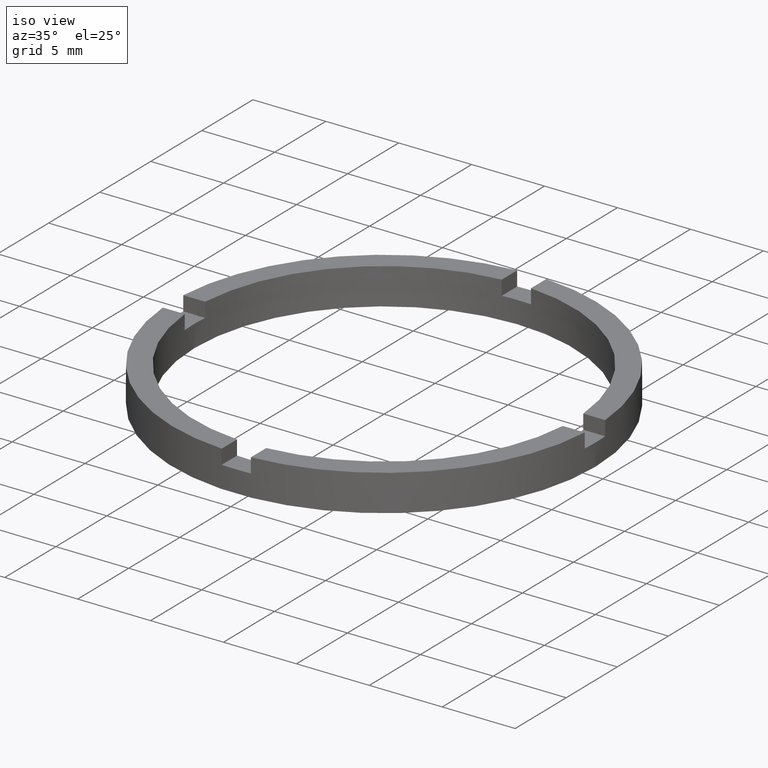
[diagram: clean part render]
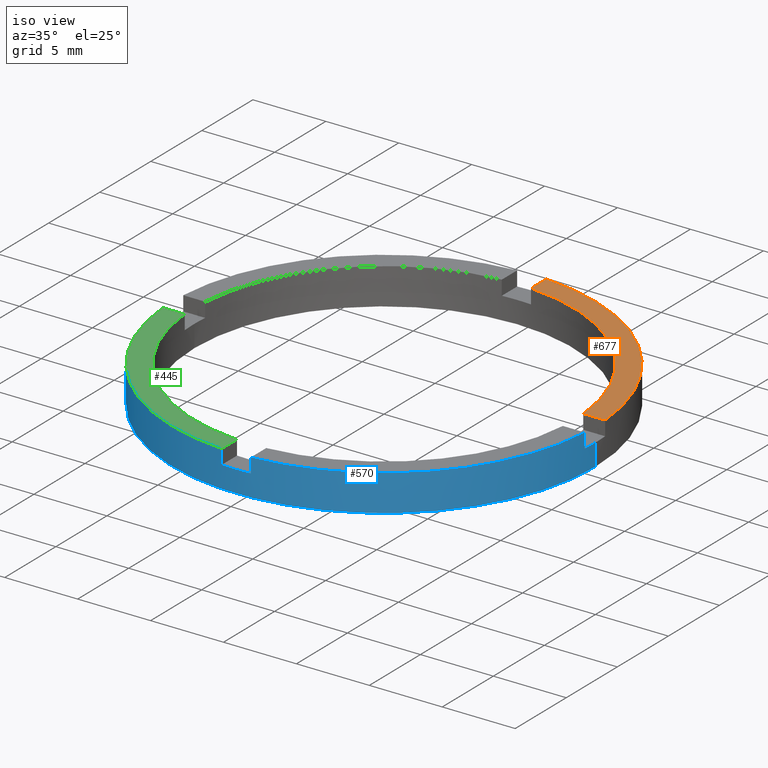
[diagram: same view with three faces highlighted in distinct colors, each labeled with its STEP entity id]
A machine part, iso view with three faces highlighted in distinct colors.
Their STEP definitions:

[orange] entity #677 — the highlighted planar face has unit normal (0, 0, 1).
#11 = DIRECTION ( 'NONE',  ( 0.000000000000000000, 0.000000000000000000, 1.000000000000000000 ) ) ;
#16 = LINE ( 'NONE', #338, #32 ) ;
#20 = FACE_OUTER_BOUND ( 'NONE', #729, .T. ) ;
#32 = VECTOR ( 'NONE', #235, 1000.000000000000000 ) ;
#59 = PLANE ( 'NONE',  #175 ) ;
#62 = EDGE_CURVE ( 'NONE', #270, #230, #105, .T. ) ;
#69 = EDGE_CURVE ( 'NONE', #230, #523, #355, .T. ) ;
#71 = CARTESIAN_POINT ( 'NONE',  ( 0.000000000000000000, 0.000000000000000000, 2.500000000000000000 ) ) ;
#76 = CARTESIAN_POINT ( 'NONE',  ( 0.9999999999999751310, 14.46547614148943417, 2.500000000000000000 ) ) ;
#92 = CARTESIAN_POINT ( 'NONE',  ( 0.000000000000000000, 0.000000000000000000, 2.500000000000000000 ) ) ;
#105 = CIRCLE ( 'NONE', #169, 13.00000000000000178 ) ;
#131 = AXIS2_PLACEMENT_3D ( 'NONE', #92, #685, #458 ) ;
#137 = VECTOR ( 'NONE', #367, 1000.000000000000000 ) ;
#139 = CARTESIAN_POINT ( 'NONE',  ( 12.96148139681573497, 0.9999999999998406830, 2.500000000000000000 ) ) ;
#169 = AXIS2_PLACEMENT_3D ( 'NONE', #71, #11, #322 ) ;
#175 = AXIS2_PLACEMENT_3D ( 'NONE', #624, #773, #439 ) ;
#230 = VERTEX_POINT ( 'NONE', #485 ) ;
#235 = DIRECTION ( 'NONE',  ( -1.000000000000000000, -4.336808689942017736E-17, -0.000000000000000000 ) ) ;
#244 = VERTEX_POINT ( 'NONE', #428 ) ;
#270 = VERTEX_POINT ( 'NONE', #139 ) ;
#287 = CIRCLE ( 'NONE', #131, 14.50000000000000000 ) ;
#322 = DIRECTION ( 'NONE',  ( 1.000000000000000000, 0.000000000000000000, 0.000000000000000000 ) ) ;
#338 = CARTESIAN_POINT ( 'NONE',  ( 4.499999999999995559, 0.9999999999998402389, 2.500000000000000000 ) ) ;
#355 = LINE ( 'NONE', #359, #137 ) ;
#359 = CARTESIAN_POINT ( 'NONE',  ( 0.9999999999999751310, 4.500000000000000888, 2.500000000000000000 ) ) ;
#367 = DIRECTION ( 'NONE',  ( 0.000000000000000000, 1.000000000000000000, 0.000000000000000000 ) ) ;
#421 = ORIENTED_EDGE ( 'NONE', *, *, #62, .F. ) ;
#428 = CARTESIAN_POINT ( 'NONE',  ( 14.46547614148944483, 0.9999999999998406830, 2.500000000000000000 ) ) ;
#439 = DIRECTION ( 'NONE',  ( 1.000000000000000000, 0.000000000000000000, -0.000000000000000000 ) ) ;
#458 = DIRECTION ( 'NONE',  ( 1.000000000000000000, 0.000000000000000000, 0.000000000000000000 ) ) ;
#481 = ORIENTED_EDGE ( 'NONE', *, *, #69, .F. ) ;
#485 = CARTESIAN_POINT ( 'NONE',  ( 0.9999999999999751310, 12.96148139681572431, 2.500000000000000000 ) ) ;
#523 = VERTEX_POINT ( 'NONE', #76 ) ;
#588 = EDGE_CURVE ( 'NONE', #244, #270, #16, .T. ) ;
#624 = CARTESIAN_POINT ( 'NONE',  ( 0.000000000000000000, 0.000000000000000000, 2.500000000000000000 ) ) ;
#677 = ADVANCED_FACE ( 'NONE', ( #20 ), #59, .T. ) ;
#685 = DIRECTION ( 'NONE',  ( 0.000000000000000000, 0.000000000000000000, 1.000000000000000000 ) ) ;
#693 = EDGE_CURVE ( 'NONE', #244, #523, #287, .T. ) ;
#710 = ORIENTED_EDGE ( 'NONE', *, *, #588, .F. ) ;
#717 = ORIENTED_EDGE ( 'NONE', *, *, #693, .T. ) ;
#729 = EDGE_LOOP ( 'NONE', ( #481, #421, #710, #717 ) ) ;
#773 = DIRECTION ( 'NONE',  ( 0.000000000000000000, 0.000000000000000000, 1.000000000000000000 ) ) ;

[blue] entity #570 — the highlighted cylindrical surface (partial cylindrical patch) has radius 14.5 mm, axis along (-0, -0, -1).
#1 = DIRECTION ( 'NONE',  ( 1.000000000000000000, 0.000000000000000000, 0.000000000000000000 ) ) ;
#3 = DIRECTION ( 'NONE',  ( 1.000000000000000000, 0.000000000000000000, 0.000000000000000000 ) ) ;
#15 = DIRECTION ( 'NONE',  ( 0.000000000000000000, 0.000000000000000000, 1.000000000000000000 ) ) ;
#29 = VECTOR ( 'NONE', #90, 1000.000000000000000 ) ;
#34 = CARTESIAN_POINT ( 'NONE',  ( -14.46547614148943062, -1.000000000000022871, 1.500000000000000000 ) ) ;
#38 = VECTOR ( 'NONE', #206, 1000.000000000000000 ) ;
#46 = LINE ( 'NONE', #574, #29 ) ;
#53 = DIRECTION ( 'NONE',  ( -0.000000000000000000, -0.000000000000000000, -1.000000000000000000 ) ) ;
#60 = DIRECTION ( 'NONE',  ( 0.000000000000000000, 0.000000000000000000, 1.000000000000000000 ) ) ;
#66 = CARTESIAN_POINT ( 'NONE',  ( 14.50000000000000000, 1.775737858763662015E-15, 0.000000000000000000 ) ) ;
#90 = DIRECTION ( 'NONE',  ( 0.000000000000000000, 0.000000000000000000, 1.000000000000000000 ) ) ;
#93 = AXIS2_PLACEMENT_3D ( 'NONE', #237, #301, #639 ) ;
#104 = CARTESIAN_POINT ( 'NONE',  ( 14.50000000000000000, 1.775737858763662015E-15, 2.500000000000000000 ) ) ;
#122 = LINE ( 'NONE', #780, #386 ) ;
#127 = CIRCLE ( 'NONE', #93, 14.50000000000000000 ) ;
#156 = CARTESIAN_POINT ( 'NONE',  ( 0.9999999999998369082, -14.46547614148944483, 1.500000000000000000 ) ) ;
#159 = CARTESIAN_POINT ( 'NONE',  ( 14.50000000000000000, 1.775737858763662015E-15, 1.500000000000000000 ) ) ;
#170 = DIRECTION ( 'NONE',  ( 1.000000000000000000, 0.000000000000000000, 0.000000000000000000 ) ) ;
#172 = ORIENTED_EDGE ( 'NONE', *, *, #364, .F. ) ;
#174 = DIRECTION ( 'NONE',  ( -0.000000000000000000, -0.000000000000000000, -1.000000000000000000 ) ) ;
#179 = CIRCLE ( 'NONE', #722, 14.50000000000000000 ) ;
#180 = CARTESIAN_POINT ( 'NONE',  ( 0.000000000000000000, 0.000000000000000000, 2.500000000000000000 ) ) ;
#204 = ORIENTED_EDGE ( 'NONE', *, *, #559, .T. ) ;
#206 = DIRECTION ( 'NONE',  ( -0.000000000000000000, -0.000000000000000000, -1.000000000000000000 ) ) ;
#222 = VERTEX_POINT ( 'NONE', #357 ) ;
#231 = ORIENTED_EDGE ( 'NONE', *, *, #300, .T. ) ;
#234 = EDGE_LOOP ( 'NONE', ( #471, #172, #204, #678, #726, #747, #231, #480, #464, #732, #735, #456 ) ) ;
#237 = CARTESIAN_POINT ( 'NONE',  ( 0.000000000000000000, 0.000000000000000000, 2.500000000000000000 ) ) ;
#243 = EDGE_CURVE ( 'NONE', #516, #484, #636, .T. ) ;
#257 = VERTEX_POINT ( 'NONE', #66 ) ;
#263 = EDGE_CURVE ( 'NONE', #777, #222, #127, .T. ) ;
#281 = EDGE_CURVE ( 'NONE', #781, #723, #625, .T. ) ;
#285 = LINE ( 'NONE', #528, #548 ) ;
#288 = CARTESIAN_POINT ( 'NONE',  ( 0.000000000000000000, 0.000000000000000000, 2.500000000000000000 ) ) ;
#292 = FACE_OUTER_BOUND ( 'NONE', #234, .T. ) ;
#300 = EDGE_CURVE ( 'NONE', #426, #222, #122, .T. ) ;
#301 = DIRECTION ( 'NONE',  ( 0.000000000000000000, 0.000000000000000000, 1.000000000000000000 ) ) ;
#304 = LINE ( 'NONE', #775, #552 ) ;
#306 = EDGE_CURVE ( 'NONE', #734, #257, #638, .T. ) ;
#316 = EDGE_CURVE ( 'NONE', #426, #425, #179, .T. ) ;
#323 = CARTESIAN_POINT ( 'NONE',  ( -14.50000000000000000, 0.000000000000000000, 1.500000000000000000 ) ) ;
#324 = AXIS2_PLACEMENT_3D ( 'NONE', #288, #410, #340 ) ;
#329 = DIRECTION ( 'NONE',  ( 1.000000000000000000, 0.000000000000000000, 0.000000000000000000 ) ) ;
#340 = DIRECTION ( 'NONE',  ( -1.000000000000000000, 0.000000000000000000, 0.000000000000000000 ) ) ;
#357 = CARTESIAN_POINT ( 'NONE',  ( -1.000000000000162981, -14.46547614148942174, 2.500000000000000000 ) ) ;
#364 = EDGE_CURVE ( 'NONE', #491, #734, #565, .T. ) ;
#373 = AXIS2_PLACEMENT_3D ( 'NONE', #613, #641, #686 ) ;
#386 = VECTOR ( 'NONE', #60, 1000.000000000000000 ) ;
#402 = AXIS2_PLACEMENT_3D ( 'NONE', #749, #620, #329 ) ;
#405 = CARTESIAN_POINT ( 'NONE',  ( 0.000000000000000000, 0.000000000000000000, 0.000000000000000000 ) ) ;
#410 = DIRECTION ( 'NONE',  ( -0.000000000000000000, -0.000000000000000000, -1.000000000000000000 ) ) ;
#412 = CARTESIAN_POINT ( 'NONE',  ( 0.000000000000000000, 0.000000000000000000, 1.500000000000000000 ) ) ;
#425 = VERTEX_POINT ( 'NONE', #156 ) ;
#426 = VERTEX_POINT ( 'NONE', #667 ) ;
#444 = CARTESIAN_POINT ( 'NONE',  ( -14.46547614148943062, -1.000000000000022871, 2.500000000000000000 ) ) ;
#456 = ORIENTED_EDGE ( 'NONE', *, *, #587, .T. ) ;
#459 = AXIS2_PLACEMENT_3D ( 'NONE', #180, #15, #3 ) ;
#464 = ORIENTED_EDGE ( 'NONE', *, *, #575, .T. ) ;
#471 = ORIENTED_EDGE ( 'NONE', *, *, #306, .F. ) ;
#480 = ORIENTED_EDGE ( 'NONE', *, *, #263, .F. ) ;
#484 = VERTEX_POINT ( 'NONE', #743 ) ;
#491 = VERTEX_POINT ( 'NONE', #515 ) ;
#515 = CARTESIAN_POINT ( 'NONE',  ( 14.46547614148942174, -1.000000000000159428, 1.500000000000000000 ) ) ;
#516 = VERTEX_POINT ( 'NONE', #687 ) ;
#528 = CARTESIAN_POINT ( 'NONE',  ( -14.46547614148943062, -1.000000000000022871, 2.500000000000000000 ) ) ;
#531 = CYLINDRICAL_SURFACE ( 'NONE', #324, 14.50000000000000000 ) ;
#548 = VECTOR ( 'NONE', #628, 1000.000000000000000 ) ;
#550 = CIRCLE ( 'NONE', #556, 14.50000000000000000 ) ;
#552 = VECTOR ( 'NONE', #53, 1000.000000000000000 ) ;
#555 = LINE ( 'NONE', #612, #38 ) ;
#556 = AXIS2_PLACEMENT_3D ( 'NONE', #405, #700, #170 ) ;
#559 = EDGE_CURVE ( 'NONE', #491, #484, #46, .T. ) ;
#565 = CIRCLE ( 'NONE', #402, 14.50000000000000000 ) ;
#570 = ADVANCED_FACE ( 'NONE', ( #292 ), #531, .T. ) ;
#574 = CARTESIAN_POINT ( 'NONE',  ( 14.46547614148942174, -1.000000000000159428, 2.500000000000000000 ) ) ;
#575 = EDGE_CURVE ( 'NONE', #777, #723, #285, .T. ) ;
#587 = EDGE_CURVE ( 'NONE', #739, #257, #550, .T. ) ;
#612 = CARTESIAN_POINT ( 'NONE',  ( 0.9999999999998369082, -14.46547614148944483, 2.500000000000000000 ) ) ;
#613 = CARTESIAN_POINT ( 'NONE',  ( 0.000000000000000000, 0.000000000000000000, 1.500000000000000000 ) ) ;
#618 = CARTESIAN_POINT ( 'NONE',  ( -14.50000000000000000, 0.000000000000000000, 0.000000000000000000 ) ) ;
#620 = DIRECTION ( 'NONE',  ( 0.000000000000000000, 0.000000000000000000, 1.000000000000000000 ) ) ;
#625 = CIRCLE ( 'NONE', #373, 14.50000000000000000 ) ;
#626 = EDGE_CURVE ( 'NONE', #781, #739, #304, .T. ) ;
#628 = DIRECTION ( 'NONE',  ( -0.000000000000000000, -0.000000000000000000, -1.000000000000000000 ) ) ;
#634 = VECTOR ( 'NONE', #174, 1000.000000000000000 ) ;
#636 = CIRCLE ( 'NONE', #459, 14.50000000000000000 ) ;
#638 = LINE ( 'NONE', #104, #634 ) ;
#639 = DIRECTION ( 'NONE',  ( 1.000000000000000000, 0.000000000000000000, 0.000000000000000000 ) ) ;
#641 = DIRECTION ( 'NONE',  ( 0.000000000000000000, 0.000000000000000000, 1.000000000000000000 ) ) ;
#667 = CARTESIAN_POINT ( 'NONE',  ( -1.000000000000162981, -14.46547614148942174, 1.500000000000000000 ) ) ;
#678 = ORIENTED_EDGE ( 'NONE', *, *, #243, .F. ) ;
#686 = DIRECTION ( 'NONE',  ( 1.000000000000000000, 0.000000000000000000, 0.000000000000000000 ) ) ;
#687 = CARTESIAN_POINT ( 'NONE',  ( 0.9999999999998369082, -14.46547614148944483, 2.500000000000000000 ) ) ;
#700 = DIRECTION ( 'NONE',  ( 0.000000000000000000, 0.000000000000000000, 1.000000000000000000 ) ) ;
#709 = DIRECTION ( 'NONE',  ( -0.000000000000000000, 0.000000000000000000, 1.000000000000000000 ) ) ;
#722 = AXIS2_PLACEMENT_3D ( 'NONE', #412, #709, #1 ) ;
#723 = VERTEX_POINT ( 'NONE', #34 ) ;
#726 = ORIENTED_EDGE ( 'NONE', *, *, #748, .T. ) ;
#732 = ORIENTED_EDGE ( 'NONE', *, *, #281, .F. ) ;
#734 = VERTEX_POINT ( 'NONE', #159 ) ;
#735 = ORIENTED_EDGE ( 'NONE', *, *, #626, .T. ) ;
#739 = VERTEX_POINT ( 'NONE', #618 ) ;
#743 = CARTESIAN_POINT ( 'NONE',  ( 14.46547614148942174, -1.000000000000159428, 2.500000000000000000 ) ) ;
#747 = ORIENTED_EDGE ( 'NONE', *, *, #316, .F. ) ;
#748 = EDGE_CURVE ( 'NONE', #516, #425, #555, .T. ) ;
#749 = CARTESIAN_POINT ( 'NONE',  ( 0.000000000000000000, 0.000000000000000000, 1.500000000000000000 ) ) ;
#775 = CARTESIAN_POINT ( 'NONE',  ( -14.50000000000000000, 0.000000000000000000, 2.500000000000000000 ) ) ;
#777 = VERTEX_POINT ( 'NONE', #444 ) ;
#780 = CARTESIAN_POINT ( 'NONE',  ( -1.000000000000162981, -14.46547614148942174, 2.500000000000000000 ) ) ;
#781 = VERTEX_POINT ( 'NONE', #323 ) ;

[green] entity #445 — the highlighted planar face has unit normal (0, 0, 1).
#31 = DIRECTION ( 'NONE',  ( 1.000000000000000000, 0.000000000000000000, -0.000000000000000000 ) ) ;
#79 = EDGE_CURVE ( 'NONE', #777, #752, #134, .T. ) ;
#93 = AXIS2_PLACEMENT_3D ( 'NONE', #237, #301, #639 ) ;
#106 = EDGE_CURVE ( 'NONE', #752, #429, #153, .T. ) ;
#127 = CIRCLE ( 'NONE', #93, 14.50000000000000000 ) ;
#129 = VECTOR ( 'NONE', #554, 1000.000000000000000 ) ;
#134 = LINE ( 'NONE', #496, #129 ) ;
#153 = CIRCLE ( 'NONE', #247, 13.00000000000000178 ) ;
#200 = ORIENTED_EDGE ( 'NONE', *, *, #106, .F. ) ;
#222 = VERTEX_POINT ( 'NONE', #357 ) ;
#237 = CARTESIAN_POINT ( 'NONE',  ( 0.000000000000000000, 0.000000000000000000, 2.500000000000000000 ) ) ;
#247 = AXIS2_PLACEMENT_3D ( 'NONE', #746, #328, #372 ) ;
#253 = EDGE_CURVE ( 'NONE', #429, #222, #390, .T. ) ;
#263 = EDGE_CURVE ( 'NONE', #777, #222, #127, .T. ) ;
#301 = DIRECTION ( 'NONE',  ( 0.000000000000000000, 0.000000000000000000, 1.000000000000000000 ) ) ;
#328 = DIRECTION ( 'NONE',  ( 0.000000000000000000, 0.000000000000000000, 1.000000000000000000 ) ) ;
#357 = CARTESIAN_POINT ( 'NONE',  ( -1.000000000000162981, -14.46547614148942174, 2.500000000000000000 ) ) ;
#366 = DIRECTION ( 'NONE',  ( 0.000000000000000000, 0.000000000000000000, 1.000000000000000000 ) ) ;
#372 = DIRECTION ( 'NONE',  ( 1.000000000000000000, 0.000000000000000000, 0.000000000000000000 ) ) ;
#380 = CARTESIAN_POINT ( 'NONE',  ( -12.96148139681571898, -1.000000000000022427, 2.500000000000000000 ) ) ;
#390 = LINE ( 'NONE', #493, #391 ) ;
#391 = VECTOR ( 'NONE', #702, 1000.000000000000000 ) ;
#429 = VERTEX_POINT ( 'NONE', #770 ) ;
#436 = PLANE ( 'NONE',  #672 ) ;
#444 = CARTESIAN_POINT ( 'NONE',  ( -14.46547614148943062, -1.000000000000022871, 2.500000000000000000 ) ) ;
#445 = ADVANCED_FACE ( 'NONE', ( #568 ), #436, .T. ) ;
#461 = ORIENTED_EDGE ( 'NONE', *, *, #263, .T. ) ;
#493 = CARTESIAN_POINT ( 'NONE',  ( -1.000000000000164313, -4.500000000000181188, 2.500000000000000000 ) ) ;
#496 = CARTESIAN_POINT ( 'NONE',  ( -4.500000000000186517, -1.000000000000021094, 2.500000000000000000 ) ) ;
#513 = EDGE_LOOP ( 'NONE', ( #759, #200, #680, #461 ) ) ;
#554 = DIRECTION ( 'NONE',  ( 1.000000000000000000, 1.734723475976807094E-16, -0.000000000000000000 ) ) ;
#568 = FACE_OUTER_BOUND ( 'NONE', #513, .T. ) ;
#639 = DIRECTION ( 'NONE',  ( 1.000000000000000000, 0.000000000000000000, 0.000000000000000000 ) ) ;
#672 = AXIS2_PLACEMENT_3D ( 'NONE', #675, #366, #31 ) ;
#675 = CARTESIAN_POINT ( 'NONE',  ( 0.000000000000000000, 0.000000000000000000, 2.500000000000000000 ) ) ;
#680 = ORIENTED_EDGE ( 'NONE', *, *, #79, .F. ) ;
#702 = DIRECTION ( 'NONE',  ( 1.301042606982605321E-16, -1.000000000000000000, 0.000000000000000000 ) ) ;
#746 = CARTESIAN_POINT ( 'NONE',  ( 0.000000000000000000, 0.000000000000000000, 2.500000000000000000 ) ) ;
#752 = VERTEX_POINT ( 'NONE', #380 ) ;
#759 = ORIENTED_EDGE ( 'NONE', *, *, #253, .F. ) ;
#770 = CARTESIAN_POINT ( 'NONE',  ( -1.000000000000163203, -12.96148139681570832, 2.500000000000000000 ) ) ;
#777 = VERTEX_POINT ( 'NONE', #444 ) ;